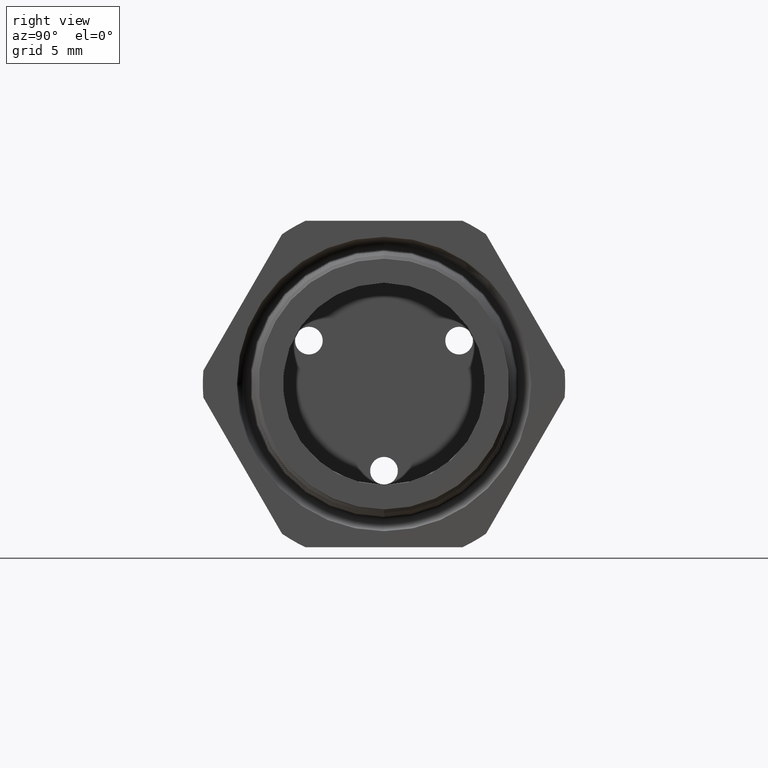
[diagram: clean part render]
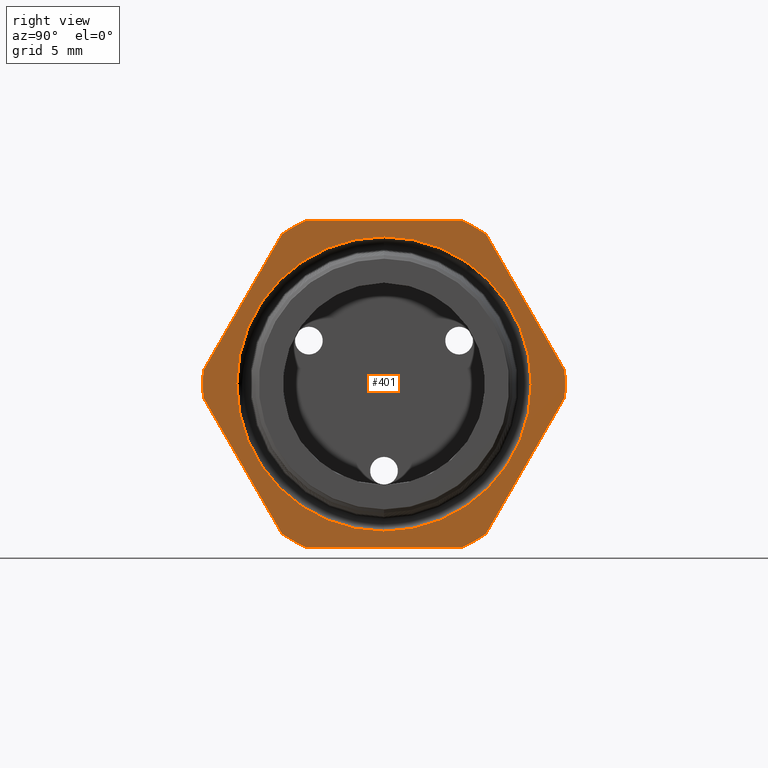
[diagram: same view with one face highlighted and labeled with its STEP entity id]
A machine part, right view. The second image highlights one B-rep face of the part: STEP entity #401.
In plain terms, the highlighted planar face has unit normal (1, 0, 0).
Its self-contained STEP definition (entity closure, byte-faithful):
#182 = VERTEX_POINT ( 'NONE', #2355 ) ;
#191 = EDGE_CURVE ( 'NONE', #224, #182, #2342, .T. ) ;
#224 = VERTEX_POINT ( 'NONE', #2445 ) ;
#361 = EDGE_CURVE ( 'NONE', #389, #362, #2695, .T. ) ;
#362 = VERTEX_POINT ( 'NONE', #2753 ) ;
#363 = ORIENTED_EDGE ( 'NONE', *, *, #364, .T. ) ;
#364 = EDGE_CURVE ( 'NONE', #362, #365, #2752, .T. ) ;
#365 = VERTEX_POINT ( 'NONE', #2748 ) ;
#366 = ORIENTED_EDGE ( 'NONE', *, *, #367, .T. ) ;
#367 = EDGE_CURVE ( 'NONE', #365, #368, #2747, .T. ) ;
#368 = VERTEX_POINT ( 'NONE', #2742 ) ;
#369 = ORIENTED_EDGE ( 'NONE', *, *, #370, .T. ) ;
#370 = EDGE_CURVE ( 'NONE', #368, #371, #2741, .T. ) ;
#371 = VERTEX_POINT ( 'NONE', #2737 ) ;
#372 = ORIENTED_EDGE ( 'NONE', *, *, #373, .T. ) ;
#373 = EDGE_CURVE ( 'NONE', #371, #374, #2736, .T. ) ;
#374 = VERTEX_POINT ( 'NONE', #2731 ) ;
#375 = ORIENTED_EDGE ( 'NONE', *, *, #430, .T. ) ;
#376 = ORIENTED_EDGE ( 'NONE', *, *, #377, .F. ) ;
#377 = EDGE_CURVE ( 'NONE', #182, #224, #2730, .T. ) ;
#378 = ORIENTED_EDGE ( 'NONE', *, *, #191, .F. ) ;
#379 = EDGE_LOOP ( 'NONE', ( #380, #384, #387, #390, #363, #366, #369, #372, #375, #432, #435, #438 ) ) ;
#380 = ORIENTED_EDGE ( 'NONE', *, *, #381, .T. ) ;
#381 = EDGE_CURVE ( 'NONE', #382, #383, #2786, .T. ) ;
#382 = VERTEX_POINT ( 'NONE', #2782 ) ;
#383 = VERTEX_POINT ( 'NONE', #2781 ) ;
#384 = ORIENTED_EDGE ( 'NONE', *, *, #385, .T. ) ;
#385 = EDGE_CURVE ( 'NONE', #383, #386, #2780, .T. ) ;
#386 = VERTEX_POINT ( 'NONE', #2775 ) ;
#387 = ORIENTED_EDGE ( 'NONE', *, *, #388, .T. ) ;
#388 = EDGE_CURVE ( 'NONE', #386, #389, #2774, .T. ) ;
#389 = VERTEX_POINT ( 'NONE', #2770 ) ;
#390 = ORIENTED_EDGE ( 'NONE', *, *, #361, .T. ) ;
#401 = ADVANCED_FACE ( 'NONE', ( #2796, #2795 ), #2794, .T. ) ;
#402 = EDGE_LOOP ( 'NONE', ( #376, #378 ) ) ;
#430 = EDGE_CURVE ( 'NONE', #374, #431, #2865, .T. ) ;
#431 = VERTEX_POINT ( 'NONE', #2861 ) ;
#432 = ORIENTED_EDGE ( 'NONE', *, *, #433, .T. ) ;
#433 = EDGE_CURVE ( 'NONE', #431, #434, #2860, .T. ) ;
#434 = VERTEX_POINT ( 'NONE', #2855 ) ;
#435 = ORIENTED_EDGE ( 'NONE', *, *, #436, .T. ) ;
#436 = EDGE_CURVE ( 'NONE', #434, #437, #2854, .T. ) ;
#437 = VERTEX_POINT ( 'NONE', #2850 ) ;
#438 = ORIENTED_EDGE ( 'NONE', *, *, #439, .T. ) ;
#439 = EDGE_CURVE ( 'NONE', #437, #382, #2911, .T. ) ;
#2338 = DIRECTION ( 'NONE',  ( 0.0000000000000000000, 0.0000000000000000000, -1.000000000000000000 ) ) ;
#2339 = DIRECTION ( 'NONE',  ( 1.000000000000000000, 0.0000000000000000000, 0.0000000000000000000 ) ) ;
#2340 = CARTESIAN_POINT ( 'NONE',  ( -0.3100000000000000000, 0.0000000000000000000, 0.0000000000000000000 ) ) ;
#2341 = AXIS2_PLACEMENT_3D ( 'NONE', #2340, #2339, #2338 ) ;
#2342 = CIRCLE ( 'NONE', #2341, 0.4238480351359016900 ) ;
#2355 = CARTESIAN_POINT ( 'NONE',  ( -0.3100000000000000000, 0.0000000000000000000, -0.4238480351359016900 ) ) ;
#2445 = CARTESIAN_POINT ( 'NONE',  ( -0.3100000000000000000, 5.190641395540770100E-017, 0.4238480351359016900 ) ) ;
#2695 = CIRCLE ( 'NONE', #2757, 0.5217000000000000500 ) ;
#2726 = DIRECTION ( 'NONE',  ( 0.0000000000000000000, 0.0000000000000000000, -1.000000000000000000 ) ) ;
#2727 = DIRECTION ( 'NONE',  ( 1.000000000000000000, 0.0000000000000000000, 0.0000000000000000000 ) ) ;
#2728 = CARTESIAN_POINT ( 'NONE',  ( -0.3100000000000000000, 0.0000000000000000000, 0.0000000000000000000 ) ) ;
#2729 = AXIS2_PLACEMENT_3D ( 'NONE', #2728, #2727, #2726 ) ;
#2730 = CIRCLE ( 'NONE', #2729, 0.4238480351359016900 ) ;
#2731 = CARTESIAN_POINT ( 'NONE',  ( -0.3100000000000000000, -0.5202473208008777700, -0.03890520787129495000 ) ) ;
#2732 = DIRECTION ( 'NONE',  ( 0.0000000000000000000, 0.0000000000000000000, -1.000000000000000000 ) ) ;
#2733 = DIRECTION ( 'NONE',  ( 1.000000000000000000, 0.0000000000000000000, 0.0000000000000000000 ) ) ;
#2734 = CARTESIAN_POINT ( 'NONE',  ( -0.3100000000000000000, 0.0000000000000000000, 0.0000000000000000000 ) ) ;
#2735 = AXIS2_PLACEMENT_3D ( 'NONE', #2734, #2733, #2732 ) ;
#2736 = CIRCLE ( 'NONE', #2735, 0.5217000000000000500 ) ;
#2737 = CARTESIAN_POINT ( 'NONE',  ( -0.3100000000000000000, -0.5202473208008777700, 0.03890520787129464500 ) ) ;
#2738 = DIRECTION ( 'NONE',  ( 0.0000000000000000000, -0.4999999999999998300, -0.8660254037844388200 ) ) ;
#2739 = VECTOR ( 'NONE', #2738, 39.37007874015748100 ) ;
#2740 = CARTESIAN_POINT ( 'NONE',  ( -0.3100000000000000000, -0.1720319397786862800, 0.6420319397786858900 ) ) ;
#2741 = LINE ( 'NONE', #2740, #2739 ) ;
#2742 = CARTESIAN_POINT ( 'NONE',  ( -0.3100000000000000000, -0.2938165587564945900, 0.4310947921287050500 ) ) ;
#2743 = DIRECTION ( 'NONE',  ( 0.0000000000000000000, 0.0000000000000000000, -1.000000000000000000 ) ) ;
#2744 = DIRECTION ( 'NONE',  ( 1.000000000000000000, 0.0000000000000000000, 0.0000000000000000000 ) ) ;
#2745 = CARTESIAN_POINT ( 'NONE',  ( -0.3100000000000000000, 0.0000000000000000000, 0.0000000000000000000 ) ) ;
#2746 = AXIS2_PLACEMENT_3D ( 'NONE', #2745, #2744, #2743 ) ;
#2747 = CIRCLE ( 'NONE', #2746, 0.5217000000000000500 ) ;
#2748 = CARTESIAN_POINT ( 'NONE',  ( -0.3100000000000000000, -0.2264307620443835300, 0.4699999999999997000 ) ) ;
#2749 = DIRECTION ( 'NONE',  ( 0.0000000000000000000, -1.000000000000000000, 0.0000000000000000000 ) ) ;
#2750 = VECTOR ( 'NONE', #2749, 39.37007874015748100 ) ;
#2751 = CARTESIAN_POINT ( 'NONE',  ( -0.3100000000000000000, 0.9399999999999999500, 0.4699999999999999200 ) ) ;
#2752 = LINE ( 'NONE', #2751, #2750 ) ;
#2753 = CARTESIAN_POINT ( 'NONE',  ( -0.3100000000000000000, 0.2264307620443832800, 0.4699999999999999200 ) ) ;
#2754 = DIRECTION ( 'NONE',  ( 0.0000000000000000000, 0.0000000000000000000, -1.000000000000000000 ) ) ;
#2755 = DIRECTION ( 'NONE',  ( 1.000000000000000000, 0.0000000000000000000, 0.0000000000000000000 ) ) ;
#2756 = CARTESIAN_POINT ( 'NONE',  ( -0.3100000000000000000, 0.0000000000000000000, 0.0000000000000000000 ) ) ;
#2757 = AXIS2_PLACEMENT_3D ( 'NONE', #2756, #2755, #2754 ) ;
#2770 = CARTESIAN_POINT ( 'NONE',  ( -0.3100000000000000000, 0.2938165587564947600, 0.4310947921287048800 ) ) ;
#2771 = DIRECTION ( 'NONE',  ( 0.0000000000000000000, -0.5000000000000001100, 0.8660254037844384900 ) ) ;
#2772 = VECTOR ( 'NONE', #2771, 39.37007874015748900 ) ;
#2773 = CARTESIAN_POINT ( 'NONE',  ( -0.3100000000000000000, 0.6420319397786862200, -0.1720319397786861700 ) ) ;
#2774 = LINE ( 'NONE', #2773, #2772 ) ;
#2775 = CARTESIAN_POINT ( 'NONE',  ( -0.3100000000000000000, 0.5202473208008776600, 0.03890520787129531800 ) ) ;
#2776 = DIRECTION ( 'NONE',  ( 0.0000000000000000000, 0.0000000000000000000, -1.000000000000000000 ) ) ;
#2777 = DIRECTION ( 'NONE',  ( 1.000000000000000000, 0.0000000000000000000, 0.0000000000000000000 ) ) ;
#2778 = CARTESIAN_POINT ( 'NONE',  ( -0.3100000000000000000, 0.0000000000000000000, 0.0000000000000000000 ) ) ;
#2779 = AXIS2_PLACEMENT_3D ( 'NONE', #2778, #2777, #2776 ) ;
#2780 = CIRCLE ( 'NONE', #2779, 0.5217000000000000500 ) ;
#2781 = CARTESIAN_POINT ( 'NONE',  ( -0.3100000000000000000, 0.5202473208008777700, -0.03890520787129494300 ) ) ;
#2782 = CARTESIAN_POINT ( 'NONE',  ( -0.3100000000000000000, 0.2938165587564948700, -0.4310947921287048800 ) ) ;
#2783 = DIRECTION ( 'NONE',  ( 0.0000000000000000000, 0.4999999999999998300, 0.8660254037844388200 ) ) ;
#2784 = VECTOR ( 'NONE', #2783, 39.37007874015748100 ) ;
#2785 = CARTESIAN_POINT ( 'NONE',  ( -0.3100000000000000000, 0.6420319397786861100, 0.1720319397786860800 ) ) ;
#2786 = LINE ( 'NONE', #2785, #2784 ) ;
#2790 = DIRECTION ( 'NONE',  ( 0.0000000000000000000, 0.0000000000000000000, -1.000000000000000000 ) ) ;
#2791 = DIRECTION ( 'NONE',  ( 1.000000000000000000, 0.0000000000000000000, 0.0000000000000000000 ) ) ;
#2792 = CARTESIAN_POINT ( 'NONE',  ( -0.3100000000000000000, 0.9399999999999999500, 0.0000000000000000000 ) ) ;
#2793 = AXIS2_PLACEMENT_3D ( 'NONE', #2792, #2791, #2790 ) ;
#2794 = PLANE ( 'NONE',  #2793 ) ;
#2795 = FACE_OUTER_BOUND ( 'NONE', #379, .T. ) ;
#2796 = FACE_BOUND ( 'NONE', #402, .T. ) ;
#2849 = CARTESIAN_POINT ( 'NONE',  ( -0.3100000000000000000, 0.0000000000000000000, 0.0000000000000000000 ) ) ;
#2850 = CARTESIAN_POINT ( 'NONE',  ( -0.3100000000000000000, 0.2264307620443831200, -0.4700000000000000300 ) ) ;
#2851 = DIRECTION ( 'NONE',  ( 0.0000000000000000000, 1.000000000000000000, 0.0000000000000000000 ) ) ;
#2852 = VECTOR ( 'NONE', #2851, 39.37007874015748100 ) ;
#2853 = CARTESIAN_POINT ( 'NONE',  ( -0.3100000000000000000, 0.9399999999999999500, -0.4700000000000000300 ) ) ;
#2854 = LINE ( 'NONE', #2853, #2852 ) ;
#2855 = CARTESIAN_POINT ( 'NONE',  ( -0.3100000000000000000, -0.2264307620443830900, -0.4700000000000000300 ) ) ;
#2856 = DIRECTION ( 'NONE',  ( 0.0000000000000000000, 0.0000000000000000000, -1.000000000000000000 ) ) ;
#2857 = DIRECTION ( 'NONE',  ( 1.000000000000000000, 0.0000000000000000000, 0.0000000000000000000 ) ) ;
#2858 = CARTESIAN_POINT ( 'NONE',  ( -0.3100000000000000000, 0.0000000000000000000, 0.0000000000000000000 ) ) ;
#2859 = AXIS2_PLACEMENT_3D ( 'NONE', #2858, #2857, #2856 ) ;
#2860 = CIRCLE ( 'NONE', #2859, 0.5217000000000000500 ) ;
#2861 = CARTESIAN_POINT ( 'NONE',  ( -0.3100000000000000000, -0.2938165587564942600, -0.4310947921287053300 ) ) ;
#2862 = DIRECTION ( 'NONE',  ( 0.0000000000000000000, 0.5000000000000002200, -0.8660254037844386000 ) ) ;
#2863 = VECTOR ( 'NONE', #2862, 39.37007874015747400 ) ;
#2864 = CARTESIAN_POINT ( 'NONE',  ( -0.3100000000000000000, -0.1720319397786861700, -0.6420319397786863300 ) ) ;
#2865 = LINE ( 'NONE', #2864, #2863 ) ;
#2908 = DIRECTION ( 'NONE',  ( 0.0000000000000000000, 0.0000000000000000000, -1.000000000000000000 ) ) ;
#2909 = DIRECTION ( 'NONE',  ( 1.000000000000000000, 0.0000000000000000000, 0.0000000000000000000 ) ) ;
#2910 = AXIS2_PLACEMENT_3D ( 'NONE', #2849, #2909, #2908 ) ;
#2911 = CIRCLE ( 'NONE', #2910, 0.5217000000000000500 ) ;